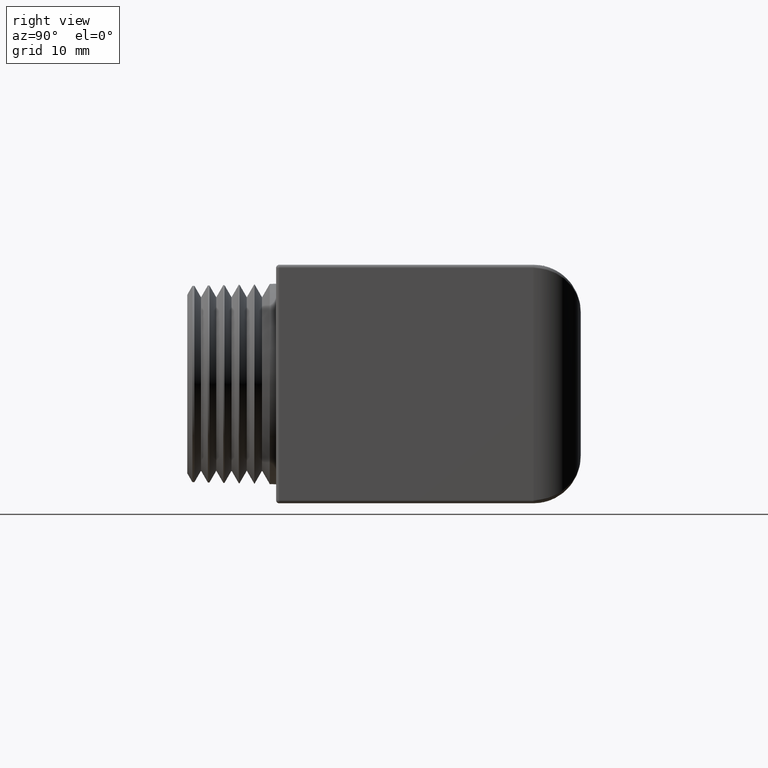
[diagram: clean part render]
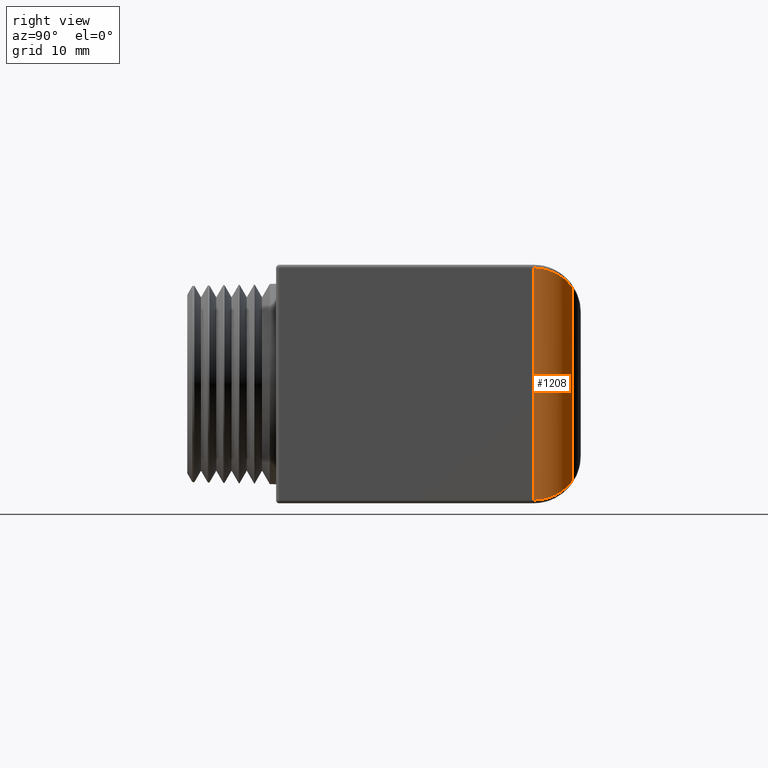
[diagram: same view with one face highlighted and labeled with its STEP entity id]
A machine part, right view. The second image highlights one B-rep face of the part: STEP entity #1208.
In plain terms, the highlighted cylindrical surface (partial cylindrical patch) has radius 4.7413 mm, axis along (0, 0, 1).
Its self-contained STEP definition (entity closure, byte-faithful):
#1147 = EDGE_CURVE ( 'NONE', #1148, #1287, #3716, .T. ) ;
#1148 = VERTEX_POINT ( 'NONE', #3712 ) ;
#1208 = ADVANCED_FACE ( 'NONE', ( #3799 ), #3802, .T. ) ;
#1209 = EDGE_LOOP ( 'NONE', ( #1210, #1212, #1213, #1242 ) ) ;
#1210 = ORIENTED_EDGE ( 'NONE', *, *, #1211, .T. ) ;
#1211 = EDGE_CURVE ( 'NONE', #1395, #1148, #3865, .T. ) ;
#1212 = ORIENTED_EDGE ( 'NONE', *, *, #1147, .T. ) ;
#1213 = ORIENTED_EDGE ( 'NONE', *, *, #1214, .T. ) ;
#1214 = EDGE_CURVE ( 'NONE', #1287, #1398, #3759, .T. ) ;
#1242 = ORIENTED_EDGE ( 'NONE', *, *, #1397, .F. ) ;
#1287 = VERTEX_POINT ( 'NONE', #3875 ) ;
#1395 = VERTEX_POINT ( 'NONE', #4064 ) ;
#1397 = EDGE_CURVE ( 'NONE', #1395, #1398, #4063, .T. ) ;
#1398 = VERTEX_POINT ( 'NONE', #4059 ) ;
#3712 = CARTESIAN_POINT ( 'NONE',  ( 1.485185488768730800, 0.5684435336938076200, -0.3801446646714156700 ) ) ;
#3713 = DIRECTION ( 'NONE',  ( 0.0000000000000000000, 0.0000000000000000000, 1.000000000000000000 ) ) ;
#3714 = VECTOR ( 'NONE', #3713, 39.37007874015748100 ) ;
#3715 = CARTESIAN_POINT ( 'NONE',  ( 1.485185488768731000, 0.5684435336938076200, -6.829619984160658000E-017 ) ) ;
#3716 = LINE ( 'NONE', #3715, #3714 ) ;
#3759 =( BOUNDED_CURVE ( )  B_SPLINE_CURVE ( 3, ( #3860, #3859, #3858, #3857 ),
 .UNSPECIFIED., .F., .T. ) 
 B_SPLINE_CURVE_WITH_KNOTS ( ( 4, 4 ),
 ( 5.302376716956534800, 6.283185307179585300 ),
 .UNSPECIFIED. ) 
 CURVE ( )  GEOMETRIC_REPRESENTATION_ITEM ( )  RATIONAL_B_SPLINE_CURVE ( ( 1.000000000000000000, 0.9214283431724710200, 0.9214283431724710200, 1.000000000000000000 ) ) 
 REPRESENTATION_ITEM ( '' )  );
#3760 = CARTESIAN_POINT ( 'NONE',  ( 1.568000000000000100, 0.4133333333333333900, -0.4573446327683616300 ) ) ;
#3787 = CARTESIAN_POINT ( 'NONE',  ( 1.485185488768730800, 0.5684435336938076200, -0.3801446646714156700 ) ) ;
#3788 = CARTESIAN_POINT ( 'NONE',  ( 1.538041254665504700, 0.5330545960042683000, -0.4294169888124763100 ) ) ;
#3789 = CARTESIAN_POINT ( 'NONE',  ( 1.568000000000000100, 0.4769423649194900500, -0.4573446327683615700 ) ) ;
#3799 = FACE_OUTER_BOUND ( 'NONE', #1209, .T. ) ;
#3800 = DIRECTION ( 'NONE',  ( 0.0000000000000000000, 0.0000000000000000000, 1.000000000000000000 ) ) ;
#3801 = AXIS2_PLACEMENT_3D ( 'NONE', #3838, #3800, #3895 ) ;
#3802 = CYLINDRICAL_SURFACE ( 'NONE', #3801, 0.1866666666666666800 ) ;
#3838 = CARTESIAN_POINT ( 'NONE',  ( 1.381333333333333300, 0.4133333333333332700, 2.364919523357121200 ) ) ;
#3857 = CARTESIAN_POINT ( 'NONE',  ( 1.568000000000000100, 0.4133333333333333900, 0.4573446327683616300 ) ) ;
#3858 = CARTESIAN_POINT ( 'NONE',  ( 1.568000000000000100, 0.4769423649194901600, 0.4573446327683614000 ) ) ;
#3859 = CARTESIAN_POINT ( 'NONE',  ( 1.538041254665504700, 0.5330545960042684100, 0.4294169888124762500 ) ) ;
#3860 = CARTESIAN_POINT ( 'NONE',  ( 1.485185488768730800, 0.5684435336938076200, 0.3801446646714155000 ) ) ;
#3865 =( BOUNDED_CURVE ( )  B_SPLINE_CURVE ( 3, ( #3760, #3789, #3788, #3787 ),
 .UNSPECIFIED., .F., .F. ) 
 B_SPLINE_CURVE_WITH_KNOTS ( ( 4, 4 ),
 ( 7.317449983029277000E-016, 0.9808085902230515600 ),
 .UNSPECIFIED. ) 
 CURVE ( )  GEOMETRIC_REPRESENTATION_ITEM ( )  RATIONAL_B_SPLINE_CURVE ( ( 1.000000000000000000, 0.9214283431724710200, 0.9214283431724710200, 1.000000000000000000 ) ) 
 REPRESENTATION_ITEM ( '' )  );
#3875 = CARTESIAN_POINT ( 'NONE',  ( 1.485185488768730800, 0.5684435336938076200, 0.3801446646714155000 ) ) ;
#3895 = DIRECTION ( 'NONE',  ( 1.000000000000000000, 0.0000000000000000000, 0.0000000000000000000 ) ) ;
#4059 = CARTESIAN_POINT ( 'NONE',  ( 1.568000000000000100, 0.4133333333333333900, 0.4573446327683616300 ) ) ;
#4060 = DIRECTION ( 'NONE',  ( 0.0000000000000000000, 0.0000000000000000000, 1.000000000000000000 ) ) ;
#4061 = VECTOR ( 'NONE', #4060, 39.37007874015748100 ) ;
#4062 = CARTESIAN_POINT ( 'NONE',  ( 1.568000000000000100, 0.4133333333333333900, 0.4699999999999999200 ) ) ;
#4063 = LINE ( 'NONE', #4062, #4061 ) ;
#4064 = CARTESIAN_POINT ( 'NONE',  ( 1.568000000000000100, 0.4133333333333333900, -0.4573446327683616300 ) ) ;